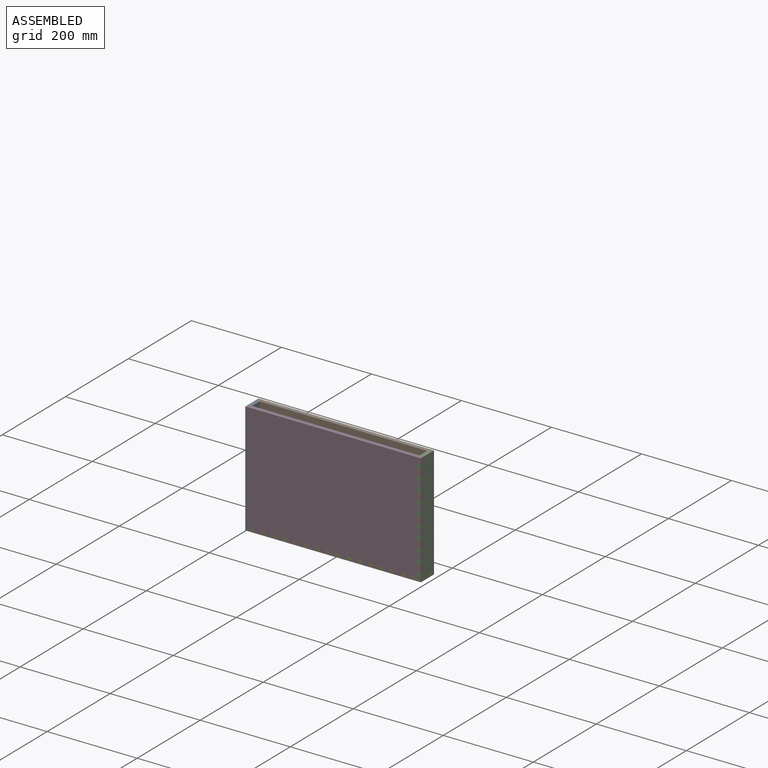
[diagram: assembled view]
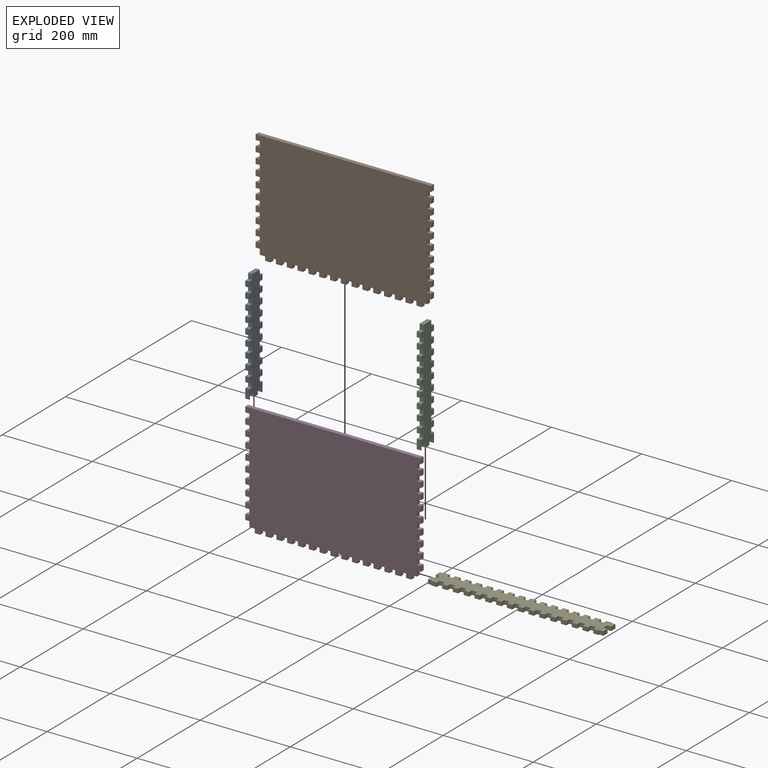
[diagram: exploded view]
GUIDED TOUR — MATED ASSEMBLY (Onshape document cdd70182d7610d9de35f9516, AutoMate assembly cdd70182d7610d9de35f9516_1303d0befae6b6fcae5bf9bf_d62f166d6a2e00d2aae2538e_default)

This assembly has 5 components, labeled P0..P4 below (a component is one placed occurrence of a part; the same part can appear more than once), held together by 4 mates. A mate is a constraint between two components; its type names the relative motion it leaves free:
  FASTENED — locks the two components together rigidly (no relative motion).
Axis/direction vectors are unit vectors and 'through' points are millimeter coordinates, both in the assembly's world frame.

MATES
  1. FASTENED "Fastened 1": P0 <-> P1, direction (0.000, 0.000, 1.000) through (-188.34, -58.39, 40.79) mm
  2. FASTENED "Fastened 4": P4 <-> P3, direction (1.000, 0.000, 0.000) through (-171.84, -91.39, -191.71) mm
  3. FASTENED "Fastened 3": P3 <-> P2, direction (0.000, 0.000, -1.000) through (192.66, -91.39, 40.79) mm
  4. FASTENED "Fastened 2": P0 <-> P3, direction (0.000, 0.000, 1.000) through (-188.34, -91.39, 40.79) mm

ASSEMBLY ORDER
  1. P2 — the base component [order verified]
  2. P0 [order verified]
  3. P4 [order verified]
  4. P1 [order verified]
  5. P3 [order verified]
Order-tag legend:
  [order verified] — this step's position reverses a verified removal order: the component was checked to insert without passing through the ones already placed.

Of the 5 components, 5 carry the full construction recipe — the FeatureScript program that regenerates the part's solid from scratch; the rest are supplied as boundary geometry only.
Each toured component is shown spotlighted twice — in the assembled view, then in the exploded view, where a leader line traces a displaced component back to its assembled socket (saturated green if recipe-attached, orange if geometry-only; every other component desaturated gray) — followed by its recipe or geometry summary and the mates that hold it.
NOTE — document 2 of 2 of this assembly tour. The two overview renders and the header above are repeated from document 1; the component sections below continue where the previous document stopped.
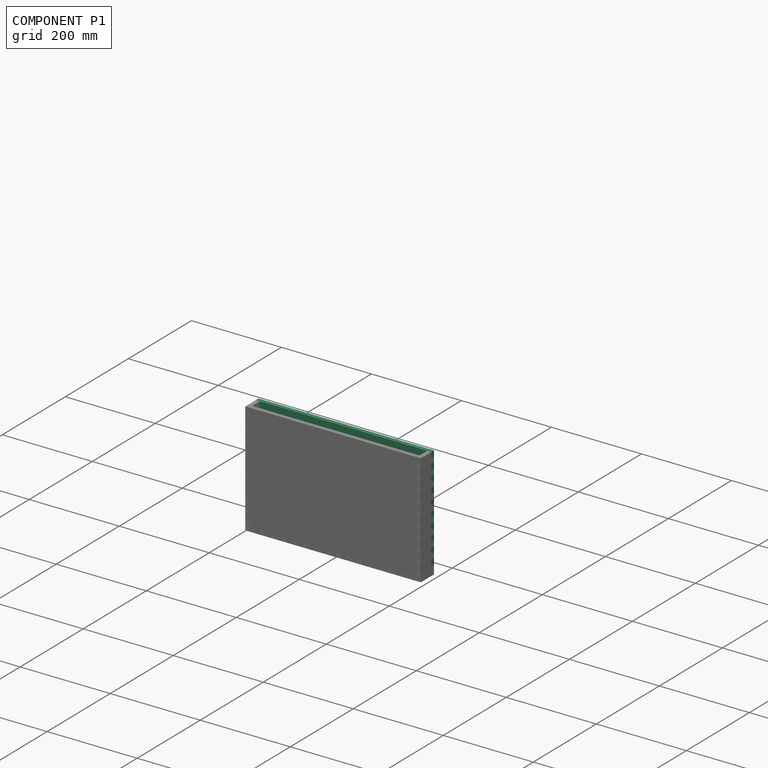
[diagram: component P1 — assembled]
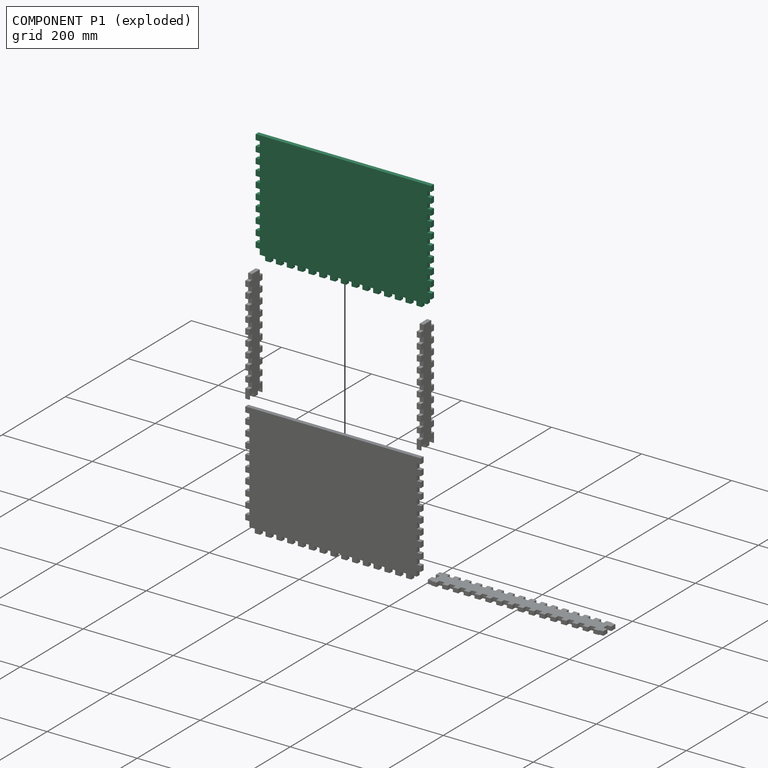
[diagram: component P1 — exploded]
COMPONENT P1 — recipe-attached (CADFS 00373084, mesh-verified: the recipe's output STEP matches this component's geometry to below the mesh-comparison resolution (tessellation chordal tolerance ~0.694 mm)).
Held by: FASTENED mate "Fastened 1" to P0.
Construction recipe (FeatureScript — the CAD program that rebuilds this solid; sketch coordinates are in the units given by the * unit suffixes, e.g. mm):

FeatureScript 1511;
import(path : "onshape/std/geometry.fs", version : "1511.0");
import(path : "onshape/std/common.fs", version : "1511.0");
const mm = millimeter;
const VERTEX = EntityType.VERTEX;
const EDGE = EntityType.EDGE;
const FACE = EntityType.FACE;
const BODY = EntityType.BODY;
function v(x, y){return vector(x, y);}
function OD(order){return orderDisambiguation(order);}
function OSD(set){return originalSetDisambiguation(set);}
function TD(topology){return topologyDisambiguation(topology);}
function TDD(query){return trueDependencyDisambiguation(query);}
function sQuery(a, b, c) {return sketchEntityQuery(a, b, c);}

annotation { "Feature Type Name" : "Feature", "Feature Type Description" : "" }
export const myFeature = defineFeature(function(context is Context, id is Id, definition is map)
    precondition{}
    {
        {
            var Q0;
            Q0=qCreatedBy(makeId("Front.planeOp"),FACE);
            var sketch = newSketch(context, id + "F0", { "sketchPlane" : qUnion([Q0])});
            skLineSegment(sketch, "E0.bottom", {"start": v(186, 120) * mm, "end": v(-186, 120) * mm});
            skLineSegment(sketch, "E0.top", {"start": v(186, -120) * mm, "end": v(-186, -120) * mm});
            skLineSegment(sketch, "E0.left", {"start": v(186, 120) * mm, "end": v(186, -120) * mm});
            skLineSegment(sketch, "E0.right", {"start": v(-186, 120) * mm, "end": v(-186, -120) * mm});
            skPoint(sketch, "E0.middle", {"position": v(0, 0) * mm});
            skSolve(sketch);
        }
        {
            var Q0;
            Q0=makeQuery(id+"F0.imprint","IMPRINT",FACE,{"disambiguationData":[TD([[makeQuery(id+"F0.imprint","IMPRINT",EDGE,{"derivedFrom":sQuery(id+"F0.wireOp",EDGE,"E0.bottom")}),1.0]])]});
            extrude(context, id + "F1", {"entities" : qUnion([Q0]), "depth" : 9 * mm});
        }
        {
            var Q0;
            Q0=makeQuery(id+"F1.opExtrude","CAP_FACE",FACE,{"disambiguationData":[OSD([sQuery(id+"F0.wireOp",EDGE,"E0.bottom"),sQuery(id+"F0.wireOp",EDGE,"E0.top"),sQuery(id+"F0.wireOp",EDGE,"E0.left"),sQuery(id+"F0.wireOp",EDGE,"E0.right")])],"isStart":false});
            var sketch = newSketch(context, id + "F2", { "sketchPlane" : qUnion([Q0])});
            skLineSegment(sketch, "E1.bottom", {"start": v(-186, 120) * mm, "end": v(-195, 120) * mm});
            skLineSegment(sketch, "E1.top", {"start": v(-186, 108) * mm, "end": v(-195, 108) * mm});
            skLineSegment(sketch, "E1.left", {"start": v(-186, 120) * mm, "end": v(-186, 108) * mm});
            skLineSegment(sketch, "E1.right", {"start": v(-195, 120) * mm, "end": v(-195, 108) * mm});
            skLineSegment(sketch, "E2.0.1.0", {"start": v(-186, 84) * mm, "end": v(-195, 84) * mm});
            skLineSegment(sketch, "E2.0.1.1", {"start": v(-195, 96) * mm, "end": v(-195, 84) * mm});
            skLineSegment(sketch, "E2.0.1.2", {"start": v(-186, 96) * mm, "end": v(-195, 96) * mm});
            skLineSegment(sketch, "E2.0.1.3", {"start": v(-186, 96) * mm, "end": v(-186, 84) * mm});
            skLineSegment(sketch, "E2.0.2.0", {"start": v(-186, 60) * mm, "end": v(-195, 60) * mm});
            skLineSegment(sketch, "E2.0.2.1", {"start": v(-195, 72) * mm, "end": v(-195, 60) * mm});
            skLineSegment(sketch, "E2.0.2.2", {"start": v(-186, 72) * mm, "end": v(-195, 72) * mm});
            skLineSegment(sketch, "E2.0.2.3", {"start": v(-186, 72) * mm, "end": v(-186, 60) * mm});
            skLineSegment(sketch, "E2.0.3.0", {"start": v(-186, 36) * mm, "end": v(-195, 36) * mm});
            skLineSegment(sketch, "E2.0.3.1", {"start": v(-195, 48) * mm, "end": v(-195, 36) * mm});
            skLineSegment(sketch, "E2.0.3.2", {"start": v(-186, 48) * mm, "end": v(-195, 48) * mm});
            skLineSegment(sketch, "E2.0.3.3", {"start": v(-186, 48) * mm, "end": v(-186, 36) * mm});
            skLineSegment(sketch, "E2.0.4.0", {"start": v(-186, 12) * mm, "end": v(-195, 12) * mm});
            skLineSegment(sketch, "E2.0.4.1", {"start": v(-195, 24) * mm, "end": v(-195, 12) * mm});
            skLineSegment(sketch, "E2.0.4.2", {"start": v(-186, 24) * mm, "end": v(-195, 24) * mm});
            skLineSegment(sketch, "E2.0.4.3", {"start": v(-186, 24) * mm, "end": v(-186, 12) * mm});
            skLineSegment(sketch, "E2.0.5.0", {"start": v(-186, -12) * mm, "end": v(-195, -12) * mm});
            skLineSegment(sketch, "E2.0.5.1", {"start": v(-195, 0) * mm, "end": v(-195, -12) * mm});
            skLineSegment(sketch, "E2.0.5.2", {"start": v(-186, 0) * mm, "end": v(-195, 0) * mm});
            skLineSegment(sketch, "E2.0.5.3", {"start": v(-186, 0) * mm, "end": v(-186, -12) * mm});
            skLineSegment(sketch, "E2.0.6.0", {"start": v(-186, -36) * mm, "end": v(-195, -36) * mm});
            skLineSegment(sketch, "E2.0.6.1", {"start": v(-195, -24) * mm, "end": v(-195, -36) * mm});
            skLineSegment(sketch, "E2.0.6.2", {"start": v(-186, -24) * mm, "end": v(-195, -24) * mm});
            skLineSegment(sketch, "E2.0.6.3", {"start": v(-186, -24) * mm, "end": v(-186, -36) * mm});
            skLineSegment(sketch, "E2.0.7.0", {"start": v(-186, -60) * mm, "end": v(-195, -60) * mm});
            skLineSegment(sketch, "E2.0.7.1", {"start": v(-195, -48) * mm, "end": v(-195, -60) * mm});
            skLineSegment(sketch, "E2.0.7.2", {"start": v(-186, -48) * mm, "end": v(-195, -48) * mm});
            skLineSegment(sketch, "E2.0.7.3", {"start": v(-186, -48) * mm, "end": v(-186, -60) * mm});
            skLineSegment(sketch, "E2.0.8.0", {"start": v(-186, -84) * mm, "end": v(-195, -84) * mm});
            skLineSegment(sketch, "E2.0.8.1", {"start": v(-195, -72) * mm, "end": v(-195, -84) * mm});
            skLineSegment(sketch, "E2.0.8.2", {"start": v(-186, -72) * mm, "end": v(-195, -72) * mm});
            skLineSegment(sketch, "E2.0.8.3", {"start": v(-186, -72) * mm, "end": v(-186, -84) * mm});
            skLineSegment(sketch, "E2.0.9.0", {"start": v(-186, -108) * mm, "end": v(-195, -108) * mm});
            skLineSegment(sketch, "E2.0.9.1", {"start": v(-195, -96) * mm, "end": v(-195, -108) * mm});
            skLineSegment(sketch, "E2.0.9.2", {"start": v(-186, -96) * mm, "end": v(-195, -96) * mm});
            skLineSegment(sketch, "E2.0.9.3", {"start": v(-186, -96) * mm, "end": v(-186, -108) * mm});
            skLineSegment(sketch, "E2.direction1", {"start": v(-195, 108) * mm, "end": v(-186, 108) * mm, "construction": true});
            skLineSegment(sketch, "E2.direction2", {"start": v(-195, 108) * mm, "end": v(-195, 84) * mm, "construction": true});
            skLineSegment(sketch, "E3", {"start": v(0, 120) * mm, "end": v(0, 0) * mm});
            skLineSegment(sketch, "E4.MirrorCS", {"start": v(186, 108) * mm, "end": v(195, 108) * mm});
            skLineSegment(sketch, "E5.MirrorCS", {"start": v(195, 108) * mm, "end": v(186, 108) * mm, "construction": true});
            skLineSegment(sketch, "E6.MirrorCS", {"start": v(195, 96) * mm, "end": v(195, 84) * mm});
            skLineSegment(sketch, "E7.MirrorCS", {"start": v(186, -24) * mm, "end": v(186, -36) * mm});
            skLineSegment(sketch, "E8.MirrorCS", {"start": v(186, -96) * mm, "end": v(186, -108) * mm});
            skLineSegment(sketch, "E9.MirrorCS", {"start": v(186, 0) * mm, "end": v(186, -12) * mm});
            skLineSegment(sketch, "E10.MirrorCS", {"start": v(186, -108) * mm, "end": v(195, -108) * mm});
            skLineSegment(sketch, "E11.MirrorCS", {"start": v(195, -48) * mm, "end": v(195, -60) * mm});
            skLineSegment(sketch, "E12.MirrorCS", {"start": v(186, -12) * mm, "end": v(195, -12) * mm});
            skLineSegment(sketch, "E13.MirrorCS", {"start": v(186, -84) * mm, "end": v(195, -84) * mm});
            skLineSegment(sketch, "E14.MirrorCS", {"start": v(186, 12) * mm, "end": v(195, 12) * mm});
            skLineSegment(sketch, "E15.MirrorCS", {"start": v(186, -60) * mm, "end": v(195, -60) * mm});
            skLineSegment(sketch, "E16.MirrorCS", {"start": v(186, -36) * mm, "end": v(195, -36) * mm});
            skLineSegment(sketch, "E17.MirrorCS", {"start": v(195, -96) * mm, "end": v(195, -108) * mm});
            skLineSegment(sketch, "E18.MirrorCS", {"start": v(186, -48) * mm, "end": v(195, -48) * mm});
            skLineSegment(sketch, "E19.MirrorCS", {"start": v(195, 0) * mm, "end": v(195, -12) * mm});
            skLineSegment(sketch, "E20.MirrorCS", {"start": v(195, -72) * mm, "end": v(195, -84) * mm});
            skLineSegment(sketch, "E21.MirrorCS", {"start": v(195, 24) * mm, "end": v(195, 12) * mm});
            skLineSegment(sketch, "E22.MirrorCS", {"start": v(195, 48) * mm, "end": v(195, 36) * mm});
            skLineSegment(sketch, "E23.MirrorCS", {"start": v(186, 48) * mm, "end": v(195, 48) * mm});
            skLineSegment(sketch, "E24.MirrorCS", {"start": v(186, 48) * mm, "end": v(186, 36) * mm});
            skLineSegment(sketch, "E25.MirrorCS", {"start": v(186, 120) * mm, "end": v(195, 120) * mm});
            skLineSegment(sketch, "E26.MirrorCS", {"start": v(186, 120) * mm, "end": v(186, 108) * mm});
            skLineSegment(sketch, "E27.MirrorCS", {"start": v(195, 120) * mm, "end": v(195, 108) * mm});
            skLineSegment(sketch, "E28.MirrorCS", {"start": v(186, 84) * mm, "end": v(195, 84) * mm});
            skLineSegment(sketch, "E29.MirrorCS", {"start": v(186, 96) * mm, "end": v(195, 96) * mm});
            skLineSegment(sketch, "E30.MirrorCS", {"start": v(186, 96) * mm, "end": v(186, 84) * mm});
            skLineSegment(sketch, "E31.MirrorCS", {"start": v(186, 60) * mm, "end": v(195, 60) * mm});
            skLineSegment(sketch, "E32.MirrorCS", {"start": v(195, 72) * mm, "end": v(195, 60) * mm});
            skLineSegment(sketch, "E33.MirrorCS", {"start": v(186, 72) * mm, "end": v(195, 72) * mm});
            skLineSegment(sketch, "E34.MirrorCS", {"start": v(186, 72) * mm, "end": v(186, 60) * mm});
            skLineSegment(sketch, "E35.MirrorCS", {"start": v(195, 108) * mm, "end": v(195, 84) * mm, "construction": true});
            skLineSegment(sketch, "E36.MirrorCS", {"start": v(195, -24) * mm, "end": v(195, -36) * mm});
            skLineSegment(sketch, "E37.MirrorCS", {"start": v(186, 36) * mm, "end": v(195, 36) * mm});
            skLineSegment(sketch, "E38.MirrorCS", {"start": v(186, -96) * mm, "end": v(195, -96) * mm});
            skLineSegment(sketch, "E39.MirrorCS", {"start": v(186, -48) * mm, "end": v(186, -60) * mm});
            skLineSegment(sketch, "E40.MirrorCS", {"start": v(186, 0) * mm, "end": v(195, 0) * mm});
            skLineSegment(sketch, "E41.MirrorCS", {"start": v(186, -72) * mm, "end": v(195, -72) * mm});
            skLineSegment(sketch, "E42.MirrorCS", {"start": v(186, 24) * mm, "end": v(195, 24) * mm});
            skLineSegment(sketch, "E43.MirrorCS", {"start": v(186, -24) * mm, "end": v(195, -24) * mm});
            skLineSegment(sketch, "E44.MirrorCS", {"start": v(186, -72) * mm, "end": v(186, -84) * mm});
            skLineSegment(sketch, "E45.MirrorCS", {"start": v(186, 24) * mm, "end": v(186, 12) * mm});
            skSolve(sketch);
        }
        {
            var Q0;
            Q0 = qSketchRegion(id + "F2", true);
            var Q1;
            Q1=makeQuery(id+"F1.opExtrude","CAP_FACE",FACE,{"disambiguationData":[OSD([sQuery(id+"F0.wireOp",EDGE,"E0.bottom"),sQuery(id+"F0.wireOp",EDGE,"E0.top"),sQuery(id+"F0.wireOp",EDGE,"E0.left"),sQuery(id+"F0.wireOp",EDGE,"E0.right")])],"isStart":true});
            extrude(context, id + "F3", {"entities" : qUnion([Q0]), "operationType" : NewBodyOperationType.ADD, "endBound" : BoundingType.UP_TO_SURFACE, "oppositeDirection" : true, "endBoundEntityFace" : qUnion([Q1]), "depth" : 25 * mm});
        }
        {
            var Q0;
            Q0=makeQuery(id+"F3.boolean.opBoolean","MERGE",FACE,{"derivedFrom":[makeQuery(id+"F1.opExtrude","CAP_FACE",FACE,{"disambiguationData":[OSD([sQuery(id+"F0.wireOp",EDGE,"E0.bottom"),sQuery(id+"F0.wireOp",EDGE,"E0.top"),sQuery(id+"F0.wireOp",EDGE,"E0.left"),sQuery(id+"F0.wireOp",EDGE,"E0.right")])],"isStart":false}),makeQuery(id+"F3.opExtrude","CAP_FACE",FACE,{"disambiguationData":[OSD([sQuery(id+"F2.wireOp",EDGE,"E1.bottom"),sQuery(id+"F2.wireOp",EDGE,"E1.top"),sQuery(id+"F2.wireOp",EDGE,"E1.left"),sQuery(id+"F2.wireOp",EDGE,"E1.right")])],"isStart":true}),makeQuery(id+"F3.opExtrude","CAP_FACE",FACE,{"disambiguationData":[OSD([sQuery(id+"F2.wireOp",EDGE,"E2.0.1.0"),sQuery(id+"F2.wireOp",EDGE,"E2.0.1.1"),sQuery(id+"F2.wireOp",EDGE,"E2.0.1.2"),sQuery(id+"F2.wireOp",EDGE,"E2.0.1.3")])],"isStart":true}),makeQuery(id+"F3.opExtrude","CAP_FACE",FACE,{"disambiguationData":[OSD([sQuery(id+"F2.wireOp",EDGE,"E2.0.2.0"),sQuery(id+"F2.wireOp",EDGE,"E2.0.2.1"),sQuery(id+"F2.wireOp",EDGE,"E2.0.2.2"),sQuery(id+"F2.wireOp",EDGE,"E2.0.2.3")])],"isStart":true}),makeQuery(id+"F3.opExtrude","CAP_FACE",FACE,{"disambiguationData":[OSD([sQuery(id+"F2.wireOp",EDGE,"E2.0.3.0"),sQuery(id+"F2.wireOp",EDGE,"E2.0.3.1"),sQuery(id+"F2.wireOp",EDGE,"E2.0.3.2"),sQuery(id+"F2.wireOp",EDGE,"E2.0.3.3")])],"isStart":true}),makeQuery(id+"F3.opExtrude","CAP_FACE",FACE,{"disambiguationData":[OSD([sQuery(id+"F2.wireOp",EDGE,"E2.0.4.0"),sQuery(id+"F2.wireOp",EDGE,"E2.0.4.1"),sQuery(id+"F2.wireOp",EDGE,"E2.0.4.2"),sQuery(id+"F2.wireOp",EDGE,"E2.0.4.3")])],"isStart":true}),makeQuery(id+"F3.opExtrude","CAP_FACE",FACE,{"disambiguationData":[OSD([sQuery(id+"F2.wireOp",EDGE,"E2.0.5.0"),sQuery(id+"F2.wireOp",EDGE,"E2.0.5.1"),sQuery(id+"F2.wireOp",EDGE,"E2.0.5.2"),sQuery(id+"F2.wireOp",EDGE,"E2.0.5.3")])],"isStart":true}),makeQuery(id+"F3.opExtrude","CAP_FACE",FACE,{"disambiguationData":[OSD([sQuery(id+"F2.wireOp",EDGE,"E2.0.6.0"),sQuery(id+"F2.wireOp",EDGE,"E2.0.6.1"),sQuery(id+"F2.wireOp",EDGE,"E2.0.6.2"),sQuery(id+"F2.wireOp",EDGE,"E2.0.6.3")])],"isStart":true}),makeQuery(id+"F3.opExtrude","CAP_FACE",FACE,{"disambiguationData":[OSD([sQuery(id+"F2.wireOp",EDGE,"E2.0.7.0"),sQuery(id+"F2.wireOp",EDGE,"E2.0.7.1"),sQuery(id+"F2.wireOp",EDGE,"E2.0.7.2"),sQuery(id+"F2.wireOp",EDGE,"E2.0.7.3")])],"isStart":true}),makeQuery(id+"F3.opExtrude","CAP_FACE",FACE,{"disambiguationData":[OSD([sQuery(id+"F2.wireOp",EDGE,"E2.0.8.0"),sQuery(id+"F2.wireOp",EDGE,"E2.0.8.1"),sQuery(id+"F2.wireOp",EDGE,"E2.0.8.2"),sQuery(id+"F2.wireOp",EDGE,"E2.0.8.3")])],"isStart":true}),makeQuery(id+"F3.opExtrude","CAP_FACE",FACE,{"disambiguationData":[OSD([sQuery(id+"F2.wireOp",EDGE,"E2.0.9.0"),sQuery(id+"F2.wireOp",EDGE,"E2.0.9.1"),sQuery(id+"F2.wireOp",EDGE,"E2.0.9.2"),sQuery(id+"F2.wireOp",EDGE,"E2.0.9.3")])],"isStart":true}),makeQuery(id+"F3.opExtrude","CAP_FACE",FACE,{"disambiguationData":[OSD([sQuery(id+"F2.wireOp",EDGE,"E4.MirrorCS"),sQuery(id+"F2.wireOp",EDGE,"E25.MirrorCS"),sQuery(id+"F2.wireOp",EDGE,"E26.MirrorCS"),sQuery(id+"F2.wireOp",EDGE,"E27.MirrorCS")])],"isStart":true}),makeQuery(id+"F3.opExtrude","CAP_FACE",FACE,{"disambiguationData":[OSD([sQuery(id+"F2.wireOp",EDGE,"E6.MirrorCS"),sQuery(id+"F2.wireOp",EDGE,"E28.MirrorCS"),sQuery(id+"F2.wireOp",EDGE,"E29.MirrorCS"),sQuery(id+"F2.wireOp",EDGE,"E30.MirrorCS")])],"isStart":true}),makeQuery(id+"F3.opExtrude","CAP_FACE",FACE,{"disambiguationData":[OSD([sQuery(id+"F2.wireOp",EDGE,"E7.MirrorCS"),sQuery(id+"F2.wireOp",EDGE,"E16.MirrorCS"),sQuery(id+"F2.wireOp",EDGE,"E36.MirrorCS"),sQuery(id+"F2.wireOp",EDGE,"E43.MirrorCS")])],"isStart":true}),makeQuery(id+"F3.opExtrude","CAP_FACE",FACE,{"disambiguationData":[OSD([sQuery(id+"F2.wireOp",EDGE,"E8.MirrorCS"),sQuery(id+"F2.wireOp",EDGE,"E10.MirrorCS"),sQuery(id+"F2.wireOp",EDGE,"E17.MirrorCS"),sQuery(id+"F2.wireOp",EDGE,"E38.MirrorCS")])],"isStart":true}),makeQuery(id+"F3.opExtrude","CAP_FACE",FACE,{"disambiguationData":[OSD([sQuery(id+"F2.wireOp",EDGE,"E9.MirrorCS"),sQuery(id+"F2.wireOp",EDGE,"E12.MirrorCS"),sQuery(id+"F2.wireOp",EDGE,"E19.MirrorCS"),sQuery(id+"F2.wireOp",EDGE,"E40.MirrorCS")])],"isStart":true}),makeQuery(id+"F3.opExtrude","CAP_FACE",FACE,{"disambiguationData":[OSD([sQuery(id+"F2.wireOp",EDGE,"E11.MirrorCS"),sQuery(id+"F2.wireOp",EDGE,"E15.MirrorCS"),sQuery(id+"F2.wireOp",EDGE,"E18.MirrorCS"),sQuery(id+"F2.wireOp",EDGE,"E39.MirrorCS")])],"isStart":true}),makeQuery(id+"F3.opExtrude","CAP_FACE",FACE,{"disambiguationData":[OSD([sQuery(id+"F2.wireOp",EDGE,"E13.MirrorCS"),sQuery(id+"F2.wireOp",EDGE,"E20.MirrorCS"),sQuery(id+"F2.wireOp",EDGE,"E41.MirrorCS"),sQuery(id+"F2.wireOp",EDGE,"E44.MirrorCS")])],"isStart":true}),makeQuery(id+"F3.opExtrude","CAP_FACE",FACE,{"disambiguationData":[OSD([sQuery(id+"F2.wireOp",EDGE,"E14.MirrorCS"),sQuery(id+"F2.wireOp",EDGE,"E21.MirrorCS"),sQuery(id+"F2.wireOp",EDGE,"E42.MirrorCS"),sQuery(id+"F2.wireOp",EDGE,"E45.MirrorCS")])],"isStart":true}),makeQuery(id+"F3.opExtrude","CAP_FACE",FACE,{"disambiguationData":[OSD([sQuery(id+"F2.wireOp",EDGE,"E22.MirrorCS"),sQuery(id+"F2.wireOp",EDGE,"E23.MirrorCS"),sQuery(id+"F2.wireOp",EDGE,"E24.MirrorCS"),sQuery(id+"F2.wireOp",EDGE,"E37.MirrorCS")])],"isStart":true}),makeQuery(id+"F3.opExtrude","CAP_FACE",FACE,{"disambiguationData":[OSD([sQuery(id+"F2.wireOp",EDGE,"E31.MirrorCS"),sQuery(id+"F2.wireOp",EDGE,"E32.MirrorCS"),sQuery(id+"F2.wireOp",EDGE,"E33.MirrorCS"),sQuery(id+"F2.wireOp",EDGE,"E34.MirrorCS")])],"isStart":true})]});
            var sketch = newSketch(context, id + "F4", { "sketchPlane" : qUnion([Q0])});
            skLineSegment(sketch, "E46", {"start": v(0, -120) * mm, "end": v(0, -129) * mm, "construction": true});
            skPoint(sketch, "E46.endSnap0", {"position": v(0, -120) * mm});
            skLineSegment(sketch, "E47.bottom", {"start": v(6, -129) * mm, "end": v(-6, -129) * mm});
            skLineSegment(sketch, "E47.top", {"start": v(6, -120) * mm, "end": v(-6, -120) * mm});
            skLineSegment(sketch, "E47.left", {"start": v(6, -129) * mm, "end": v(6, -120) * mm});
            skLineSegment(sketch, "E47.right", {"start": v(-6, -129) * mm, "end": v(-6, -120) * mm});
            skPoint(sketch, "E47.middle", {"position": v(0, -124.5) * mm});
            skLineSegment(sketch, "E48.1.0.0", {"start": v(30, -129) * mm, "end": v(30, -120) * mm});
            skLineSegment(sketch, "E48.1.0.1", {"start": v(30, -120) * mm, "end": v(18, -120) * mm});
            skLineSegment(sketch, "E48.1.0.2", {"start": v(18, -129) * mm, "end": v(18, -120) * mm});
            skLineSegment(sketch, "E48.1.0.3", {"start": v(30, -129) * mm, "end": v(18, -129) * mm});
            skLineSegment(sketch, "E48.2.0.0", {"start": v(54, -129) * mm, "end": v(54, -120) * mm});
            skLineSegment(sketch, "E48.2.0.1", {"start": v(54, -120) * mm, "end": v(42, -120) * mm});
            skLineSegment(sketch, "E48.2.0.2", {"start": v(42, -129) * mm, "end": v(42, -120) * mm});
            skLineSegment(sketch, "E48.2.0.3", {"start": v(54, -129) * mm, "end": v(42, -129) * mm});
            skLineSegment(sketch, "E48.3.0.0", {"start": v(78, -129) * mm, "end": v(78, -120) * mm});
            skLineSegment(sketch, "E48.3.0.1", {"start": v(78, -120) * mm, "end": v(66, -120) * mm});
            skLineSegment(sketch, "E48.3.0.2", {"start": v(66, -129) * mm, "end": v(66, -120) * mm});
            skLineSegment(sketch, "E48.3.0.3", {"start": v(78, -129) * mm, "end": v(66, -129) * mm});
            skLineSegment(sketch, "E48.4.0.0", {"start": v(102, -129) * mm, "end": v(102, -120) * mm});
            skLineSegment(sketch, "E48.4.0.1", {"start": v(102, -120) * mm, "end": v(90, -120) * mm});
            skLineSegment(sketch, "E48.4.0.2", {"start": v(90, -129) * mm, "end": v(90, -120) * mm});
            skLineSegment(sketch, "E48.4.0.3", {"start": v(102, -129) * mm, "end": v(90, -129) * mm});
            skLineSegment(sketch, "E48.5.0.0", {"start": v(126, -129) * mm, "end": v(126, -120) * mm});
            skLineSegment(sketch, "E48.5.0.1", {"start": v(126, -120) * mm, "end": v(114, -120) * mm});
            skLineSegment(sketch, "E48.5.0.2", {"start": v(114, -129) * mm, "end": v(114, -120) * mm});
            skLineSegment(sketch, "E48.5.0.3", {"start": v(126, -129) * mm, "end": v(114, -129) * mm});
            skLineSegment(sketch, "E48.6.0.0", {"start": v(150, -129) * mm, "end": v(150, -120) * mm});
            skLineSegment(sketch, "E48.6.0.1", {"start": v(150, -120) * mm, "end": v(138, -120) * mm});
            skLineSegment(sketch, "E48.6.0.2", {"start": v(138, -129) * mm, "end": v(138, -120) * mm});
            skLineSegment(sketch, "E48.6.0.3", {"start": v(150, -129) * mm, "end": v(138, -129) * mm});
            skLineSegment(sketch, "E48.7.0.0", {"start": v(174, -129) * mm, "end": v(174, -120) * mm});
            skLineSegment(sketch, "E48.7.0.1", {"start": v(174, -120) * mm, "end": v(162, -120) * mm});
            skLineSegment(sketch, "E48.7.0.2", {"start": v(162, -129) * mm, "end": v(162, -120) * mm});
            skLineSegment(sketch, "E48.7.0.3", {"start": v(174, -129) * mm, "end": v(162, -129) * mm});
            skLineSegment(sketch, "E48.direction1", {"start": v(6, -129) * mm, "end": v(30, -129) * mm, "construction": true});
            skLineSegment(sketch, "E49.MirrorCS", {"start": v(-30, -129) * mm, "end": v(-30, -120) * mm});
            skLineSegment(sketch, "E50.MirrorCS", {"start": v(-102, -129) * mm, "end": v(-102, -120) * mm});
            skLineSegment(sketch, "E51.MirrorCS", {"start": v(-126, -129) * mm, "end": v(-126, -120) * mm});
            skLineSegment(sketch, "E52.MirrorCS", {"start": v(-174, -120) * mm, "end": v(-162, -120) * mm});
            skLineSegment(sketch, "E53.MirrorCS", {"start": v(-126, -129) * mm, "end": v(-114, -129) * mm});
            skLineSegment(sketch, "E54.MirrorCS", {"start": v(-54, -129) * mm, "end": v(-42, -129) * mm});
            skLineSegment(sketch, "E55.MirrorCS", {"start": v(-42, -129) * mm, "end": v(-42, -120) * mm});
            skLineSegment(sketch, "E56.MirrorCS", {"start": v(-150, -129) * mm, "end": v(-138, -129) * mm});
            skLineSegment(sketch, "E57.MirrorCS", {"start": v(-54, -120) * mm, "end": v(-42, -120) * mm});
            skLineSegment(sketch, "E58.MirrorCS", {"start": v(-54, -129) * mm, "end": v(-54, -120) * mm});
            skLineSegment(sketch, "E59.MirrorCS", {"start": v(-30, -129) * mm, "end": v(-18, -129) * mm});
            skLineSegment(sketch, "E60.MirrorCS", {"start": v(-18, -129) * mm, "end": v(-18, -120) * mm});
            skLineSegment(sketch, "E61.MirrorCS", {"start": v(-30, -120) * mm, "end": v(-18, -120) * mm});
            skLineSegment(sketch, "E62.MirrorCS", {"start": v(-114, -129) * mm, "end": v(-114, -120) * mm});
            skLineSegment(sketch, "E63.MirrorCS", {"start": v(-66, -129) * mm, "end": v(-66, -120) * mm});
            skLineSegment(sketch, "E64.MirrorCS", {"start": v(-78, -120) * mm, "end": v(-66, -120) * mm});
            skLineSegment(sketch, "E65.MirrorCS", {"start": v(-78, -129) * mm, "end": v(-78, -120) * mm});
            skLineSegment(sketch, "E66.MirrorCS", {"start": v(-102, -129) * mm, "end": v(-90, -129) * mm});
            skLineSegment(sketch, "E67.MirrorCS", {"start": v(-174, -129) * mm, "end": v(-174, -120) * mm});
            skLineSegment(sketch, "E68.MirrorCS", {"start": v(-138, -129) * mm, "end": v(-138, -120) * mm});
            skLineSegment(sketch, "E69.MirrorCS", {"start": v(-78, -129) * mm, "end": v(-66, -129) * mm});
            skLineSegment(sketch, "E70.MirrorCS", {"start": v(-174, -129) * mm, "end": v(-162, -129) * mm});
            skLineSegment(sketch, "E71.MirrorCS", {"start": v(-150, -129) * mm, "end": v(-150, -120) * mm});
            skLineSegment(sketch, "E72.MirrorCS", {"start": v(-162, -129) * mm, "end": v(-162, -120) * mm});
            skLineSegment(sketch, "E73.MirrorCS", {"start": v(-126, -120) * mm, "end": v(-114, -120) * mm});
            skLineSegment(sketch, "E74.MirrorCS", {"start": v(-102, -120) * mm, "end": v(-90, -120) * mm});
            skLineSegment(sketch, "E75.MirrorCS", {"start": v(-150, -120) * mm, "end": v(-138, -120) * mm});
            skLineSegment(sketch, "E76.MirrorCS", {"start": v(-90, -129) * mm, "end": v(-90, -120) * mm});
            skSolve(sketch);
        }
        {
            var Q0;
            Q0 = qSketchRegion(id + "F4", true);
            var Q1;
            {var subQ0=sQuery(id+"F0.wireOp",EDGE,"E0.right");var subQ1=sQuery(id+"F0.wireOp",EDGE,"E0.left");var subQ2=sQuery(id+"F0.wireOp",EDGE,"E0.top");var subQ3=sQuery(id+"F0.wireOp",EDGE,"E0.bottom");Q1=makeQuery(id+"F3.boolean.opBoolean","MERGE",FACE,{"derivedFrom":[makeQuery(id+"F1.opExtrude","CAP_FACE",FACE,{"disambiguationData":[OSD([subQ3,subQ2,subQ1,subQ0])],"isStart":true}),makeQuery(id+"F3.opExtrude","CAP_FACE",FACE,{"disambiguationData":[OSD([subQ3,subQ2,subQ1,subQ0]),ownerDisambiguation([makeQuery(id+"F2.imprint","IMPRINT",EDGE,{"derivedFrom":sQuery(id+"F2.wireOp",EDGE,"E1.bottom")})])],"isStart":false}),makeQuery(id+"F3.opExtrude","CAP_FACE",FACE,{"disambiguationData":[OSD([subQ3,subQ2,subQ1,subQ0]),ownerDisambiguation([makeQuery(id+"F2.imprint","IMPRINT",EDGE,{"derivedFrom":sQuery(id+"F2.wireOp",EDGE,"E2.0.1.0")})])],"isStart":false}),makeQuery(id+"F3.opExtrude","CAP_FACE",FACE,{"disambiguationData":[OSD([subQ3,subQ2,subQ1,subQ0]),ownerDisambiguation([makeQuery(id+"F2.imprint","IMPRINT",EDGE,{"derivedFrom":sQuery(id+"F2.wireOp",EDGE,"E2.0.2.0")})])],"isStart":false}),makeQuery(id+"F3.opExtrude","CAP_FACE",FACE,{"disambiguationData":[OSD([subQ3,subQ2,subQ1,subQ0]),ownerDisambiguation([makeQuery(id+"F2.imprint","IMPRINT",EDGE,{"derivedFrom":sQuery(id+"F2.wireOp",EDGE,"E2.0.3.0")})])],"isStart":false}),makeQuery(id+"F3.opExtrude","CAP_FACE",FACE,{"disambiguationData":[OSD([subQ3,subQ2,subQ1,subQ0]),ownerDisambiguation([makeQuery(id+"F2.imprint","IMPRINT",EDGE,{"derivedFrom":sQuery(id+"F2.wireOp",EDGE,"E2.0.4.0")})])],"isStart":false}),makeQuery(id+"F3.opExtrude","CAP_FACE",FACE,{"disambiguationData":[OSD([subQ3,subQ2,subQ1,subQ0]),ownerDisambiguation([makeQuery(id+"F2.imprint","IMPRINT",EDGE,{"derivedFrom":sQuery(id+"F2.wireOp",EDGE,"E2.0.5.0")})])],"isStart":false}),makeQuery(id+"F3.opExtrude","CAP_FACE",FACE,{"disambiguationData":[OSD([subQ3,subQ2,subQ1,subQ0]),ownerDisambiguation([makeQuery(id+"F2.imprint","IMPRINT",EDGE,{"derivedFrom":sQuery(id+"F2.wireOp",EDGE,"E2.0.6.0")})])],"isStart":false}),makeQuery(id+"F3.opExtrude","CAP_FACE",FACE,{"disambiguationData":[OSD([subQ3,subQ2,subQ1,subQ0]),ownerDisambiguation([makeQuery(id+"F2.imprint","IMPRINT",EDGE,{"derivedFrom":sQuery(id+"F2.wireOp",EDGE,"E2.0.7.0")})])],"isStart":false}),makeQuery(id+"F3.opExtrude","CAP_FACE",FACE,{"disambiguationData":[OSD([subQ3,subQ2,subQ1,subQ0]),ownerDisambiguation([makeQuery(id+"F2.imprint","IMPRINT",EDGE,{"derivedFrom":sQuery(id+"F2.wireOp",EDGE,"E2.0.8.0")})])],"isStart":false}),makeQuery(id+"F3.opExtrude","CAP_FACE",FACE,{"disambiguationData":[OSD([subQ3,subQ2,subQ1,subQ0]),ownerDisambiguation([makeQuery(id+"F2.imprint","IMPRINT",EDGE,{"derivedFrom":sQuery(id+"F2.wireOp",EDGE,"E2.0.9.0")})])],"isStart":false}),makeQuery(id+"F3.opExtrude","CAP_FACE",FACE,{"disambiguationData":[OSD([subQ3,subQ2,subQ1,subQ0]),ownerDisambiguation([makeQuery(id+"F2.imprint","IMPRINT",EDGE,{"derivedFrom":sQuery(id+"F2.wireOp",EDGE,"E4.MirrorCS")})])],"isStart":false}),makeQuery(id+"F3.opExtrude","CAP_FACE",FACE,{"disambiguationData":[OSD([subQ3,subQ2,subQ1,subQ0]),ownerDisambiguation([makeQuery(id+"F2.imprint","IMPRINT",EDGE,{"derivedFrom":sQuery(id+"F2.wireOp",EDGE,"E6.MirrorCS")})])],"isStart":false}),makeQuery(id+"F3.opExtrude","CAP_FACE",FACE,{"disambiguationData":[OSD([subQ3,subQ2,subQ1,subQ0]),ownerDisambiguation([makeQuery(id+"F2.imprint","IMPRINT",EDGE,{"derivedFrom":sQuery(id+"F2.wireOp",EDGE,"E7.MirrorCS")})])],"isStart":false}),makeQuery(id+"F3.opExtrude","CAP_FACE",FACE,{"disambiguationData":[OSD([subQ3,subQ2,subQ1,subQ0]),ownerDisambiguation([makeQuery(id+"F2.imprint","IMPRINT",EDGE,{"derivedFrom":sQuery(id+"F2.wireOp",EDGE,"E8.MirrorCS")})])],"isStart":false}),makeQuery(id+"F3.opExtrude","CAP_FACE",FACE,{"disambiguationData":[OSD([subQ3,subQ2,subQ1,subQ0]),ownerDisambiguation([makeQuery(id+"F2.imprint","IMPRINT",EDGE,{"derivedFrom":sQuery(id+"F2.wireOp",EDGE,"E9.MirrorCS")})])],"isStart":false}),makeQuery(id+"F3.opExtrude","CAP_FACE",FACE,{"disambiguationData":[OSD([subQ3,subQ2,subQ1,subQ0]),ownerDisambiguation([makeQuery(id+"F2.imprint","IMPRINT",EDGE,{"derivedFrom":sQuery(id+"F2.wireOp",EDGE,"E11.MirrorCS")})])],"isStart":false}),makeQuery(id+"F3.opExtrude","CAP_FACE",FACE,{"disambiguationData":[OSD([subQ3,subQ2,subQ1,subQ0]),ownerDisambiguation([makeQuery(id+"F2.imprint","IMPRINT",EDGE,{"derivedFrom":sQuery(id+"F2.wireOp",EDGE,"E13.MirrorCS")})])],"isStart":false}),makeQuery(id+"F3.opExtrude","CAP_FACE",FACE,{"disambiguationData":[OSD([subQ3,subQ2,subQ1,subQ0]),ownerDisambiguation([makeQuery(id+"F2.imprint","IMPRINT",EDGE,{"derivedFrom":sQuery(id+"F2.wireOp",EDGE,"E14.MirrorCS")})])],"isStart":false}),makeQuery(id+"F3.opExtrude","CAP_FACE",FACE,{"disambiguationData":[OSD([subQ3,subQ2,subQ1,subQ0]),ownerDisambiguation([makeQuery(id+"F2.imprint","IMPRINT",EDGE,{"derivedFrom":sQuery(id+"F2.wireOp",EDGE,"E22.MirrorCS")})])],"isStart":false}),makeQuery(id+"F3.opExtrude","CAP_FACE",FACE,{"disambiguationData":[OSD([subQ3,subQ2,subQ1,subQ0]),ownerDisambiguation([makeQuery(id+"F2.imprint","IMPRINT",EDGE,{"derivedFrom":sQuery(id+"F2.wireOp",EDGE,"E31.MirrorCS")})])],"isStart":false})]});}
            extrude(context, id + "F5", {"entities" : qUnion([Q0]), "operationType" : NewBodyOperationType.ADD, "endBound" : BoundingType.UP_TO_SURFACE, "oppositeDirection" : true, "endBoundEntityFace" : qUnion([Q1]), "depth" : 25 * mm});
        }
    });
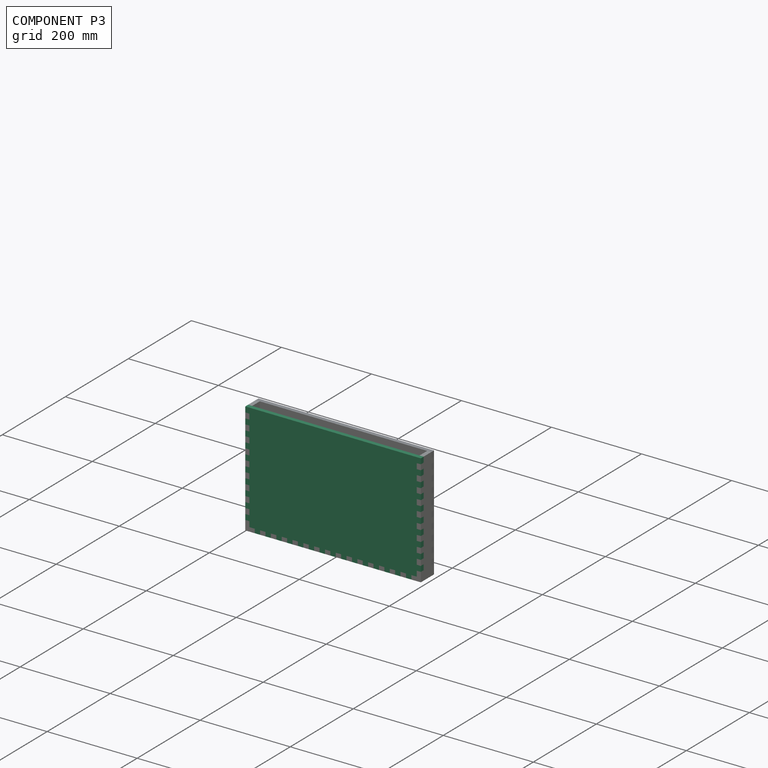
[diagram: component P3 — assembled]
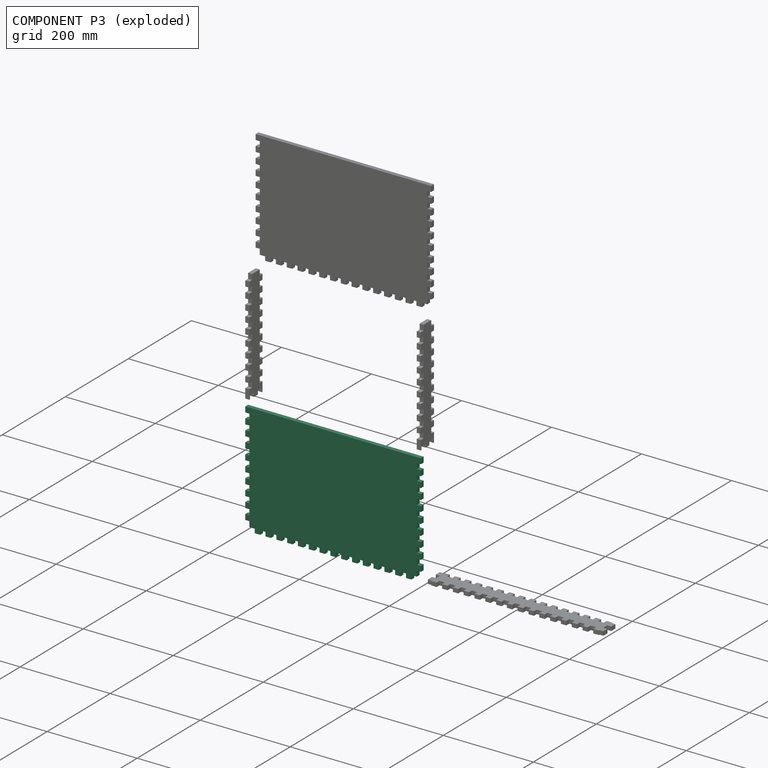
[diagram: component P3 — exploded]
COMPONENT P3 — same part as P1 (CADFS 00373084); its construction recipe is shown at P1.
Held by: FASTENED mate "Fastened 4" to P4; FASTENED mate "Fastened 3" to P2; FASTENED mate "Fastened 2" to P0.
PROVENANCE & LICENSES
Assembly (occurrences, transforms, mates, per-part STEP geometry): AutoMate dataset, Zenodo record 7776208, CC0.
Construction recipes: CADFS (HuggingFace VladPyatov/CADFS, CC-BY-4.0, layered over the ABC dataset), FeatureScript reconstruction programs keyed by ABC model id.
Join: ABC meta listings map ABC model id -> Onshape documentId; within a shared document, parts are matched by geometric signature (bounding-box dims + volume at 0.1% relative tolerance, exact B-rep face/solid counts).
Verification: 5 of this assembly's 5 components carry a recipe attachment, and every attachment is mesh-verified: the CADFS STEP and the AutoMate member STEP were compared as meshes in their shared local frame (symmetric sampled-point-to-mesh distance); worst across the 5 attachments: below the mesh-comparison resolution (tessellation chordal tolerance ~0.694 mm) on a 463 mm part.
Renders: orthographic iso camera (az 35 / el 25); the floor grid conveys scale (grid pitch printed in each image; no ruler). In the exploded view each component is displaced by its stored offset vector: the offsets alone carry the explosion direction (mate normal/axis signs are not orientation cues and do not encode it), and separation distances are assigned per mate-chain, not proportionally to assembly-order depth.
